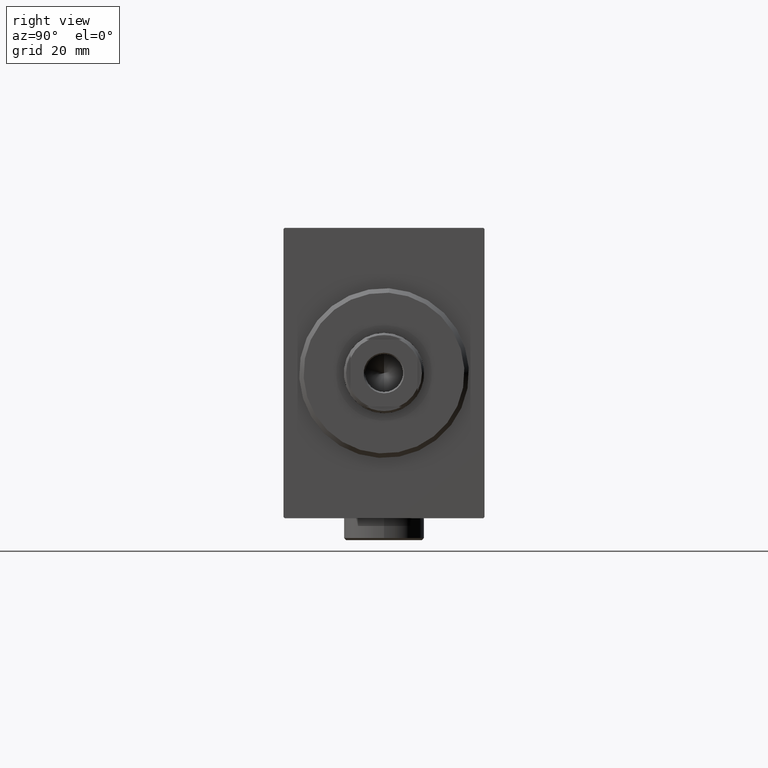
[diagram: clean part render]
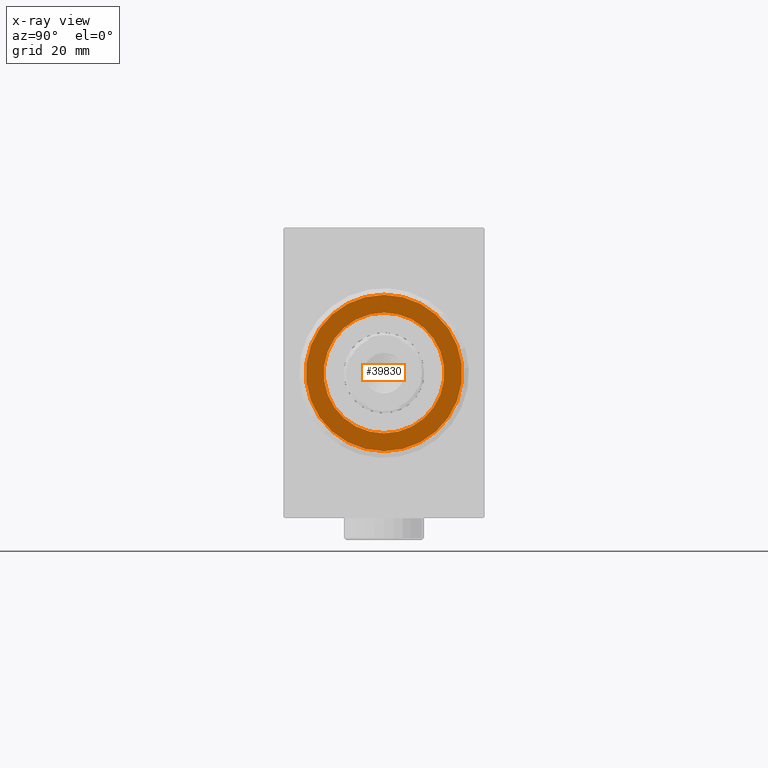
[diagram: x-ray — body ghosted, one internal face saturated and labeled with its STEP entity id]
A machine part, right view, then the same camera in x-ray: the body is ghosted and one INTERNAL B-rep face — a face not visible from any outside direction — is saturated and labeled: STEP entity #39830.
In plain terms, the highlighted planar face has unit normal (1, 0, -0).
Its self-contained STEP definition (entity closure, byte-faithful):
#233 = CARTESIAN_POINT ( 'NONE',  ( 5.000000000000000000, 2.143131898507868643E-15, -17.50000000000000355 ) ) ;
#1255 = AXIS2_PLACEMENT_3D ( 'NONE', #12339, #4707, #2000 ) ;
#1521 = ORIENTED_EDGE ( 'NONE', *, *, #36377, .T. ) ;
#1717 = CARTESIAN_POINT ( 'NONE',  ( 5.000000000000000000, 0.000000000000000000, 0.000000000000000000 ) ) ;
#1941 = DIRECTION ( 'NONE',  ( 0.000000000000000000, 0.000000000000000000, 1.000000000000000000 ) ) ;
#2000 = DIRECTION ( 'NONE',  ( 0.000000000000000000, 0.000000000000000000, 1.000000000000000000 ) ) ;
#2463 = FACE_OUTER_BOUND ( 'NONE', #6489, .T. ) ;
#2633 = ORIENTED_EDGE ( 'NONE', *, *, #34698, .F. ) ;
#3350 = DIRECTION ( 'NONE',  ( -1.000000000000000000, 0.000000000000000000, 0.000000000000000000 ) ) ;
#3936 = CIRCLE ( 'NONE', #32692, 13.50000000000000000 ) ;
#4306 = DIRECTION ( 'NONE',  ( -1.000000000000000000, 0.000000000000000000, 0.000000000000000000 ) ) ;
#4707 = DIRECTION ( 'NONE',  ( -1.000000000000000000, 0.000000000000000000, 0.000000000000000000 ) ) ;
#4745 = CARTESIAN_POINT ( 'NONE',  ( 5.000000000000000000, 0.000000000000000000, 0.000000000000000000 ) ) ;
#6389 = AXIS2_PLACEMENT_3D ( 'NONE', #40274, #3350, #40942 ) ;
#6489 = EDGE_LOOP ( 'NONE', ( #7092, #1521 ) ) ;
#7092 = ORIENTED_EDGE ( 'NONE', *, *, #23450, .T. ) ;
#7757 = VERTEX_POINT ( 'NONE', #233 ) ;
#8691 = DIRECTION ( 'NONE',  ( -1.000000000000000000, 0.000000000000000000, 0.000000000000000000 ) ) ;
#12158 = DIRECTION ( 'NONE',  ( 0.000000000000000000, 0.000000000000000000, 1.000000000000000000 ) ) ;
#12339 = CARTESIAN_POINT ( 'NONE',  ( 5.000000000000000000, 0.000000000000000000, 0.000000000000000000 ) ) ;
#12814 = PLANE ( 'NONE',  #6389 ) ;
#16761 = CARTESIAN_POINT ( 'NONE',  ( 5.000000000000000000, 0.000000000000000000, 0.000000000000000000 ) ) ;
#17813 = CIRCLE ( 'NONE', #1255, 17.50000000000000355 ) ;
#21347 = CIRCLE ( 'NONE', #27840, 13.50000000000000000 ) ;
#21890 = CIRCLE ( 'NONE', #31251, 17.50000000000000355 ) ;
#22956 = FACE_BOUND ( 'NONE', #39075, .T. ) ;
#23132 = CARTESIAN_POINT ( 'NONE',  ( 5.000000000000000000, 0.000000000000000000, 17.50000000000000355 ) ) ;
#23380 = ORIENTED_EDGE ( 'NONE', *, *, #23873, .F. ) ;
#23450 = EDGE_CURVE ( 'NONE', #40983, #7757, #21890, .T. ) ;
#23873 = EDGE_CURVE ( 'NONE', #29699, #31867, #3936, .T. ) ;
#27840 = AXIS2_PLACEMENT_3D ( 'NONE', #1717, #8691, #1941 ) ;
#28165 = CARTESIAN_POINT ( 'NONE',  ( 5.000000000000000000, 1.653273178848926867E-15, -13.50000000000000000 ) ) ;
#29699 = VERTEX_POINT ( 'NONE', #29947 ) ;
#29947 = CARTESIAN_POINT ( 'NONE',  ( 5.000000000000000000, 0.000000000000000000, 13.50000000000000000 ) ) ;
#30488 = DIRECTION ( 'NONE',  ( -1.000000000000000000, 0.000000000000000000, 0.000000000000000000 ) ) ;
#31251 = AXIS2_PLACEMENT_3D ( 'NONE', #4745, #4306, #12158 ) ;
#31867 = VERTEX_POINT ( 'NONE', #28165 ) ;
#32692 = AXIS2_PLACEMENT_3D ( 'NONE', #16761, #30488, #44008 ) ;
#34698 = EDGE_CURVE ( 'NONE', #31867, #29699, #21347, .T. ) ;
#36377 = EDGE_CURVE ( 'NONE', #7757, #40983, #17813, .T. ) ;
#39075 = EDGE_LOOP ( 'NONE', ( #23380, #2633 ) ) ;
#39830 = ADVANCED_FACE ( 'NONE', ( #22956, #2463 ), #12814, .T. ) ;
#40274 = CARTESIAN_POINT ( 'NONE',  ( 5.000000000000000000, 0.000000000000000000, 0.000000000000000000 ) ) ;
#40942 = DIRECTION ( 'NONE',  ( 0.000000000000000000, 0.000000000000000000, 1.000000000000000000 ) ) ;
#40983 = VERTEX_POINT ( 'NONE', #23132 ) ;
#44008 = DIRECTION ( 'NONE',  ( 0.000000000000000000, 0.000000000000000000, 1.000000000000000000 ) ) ;